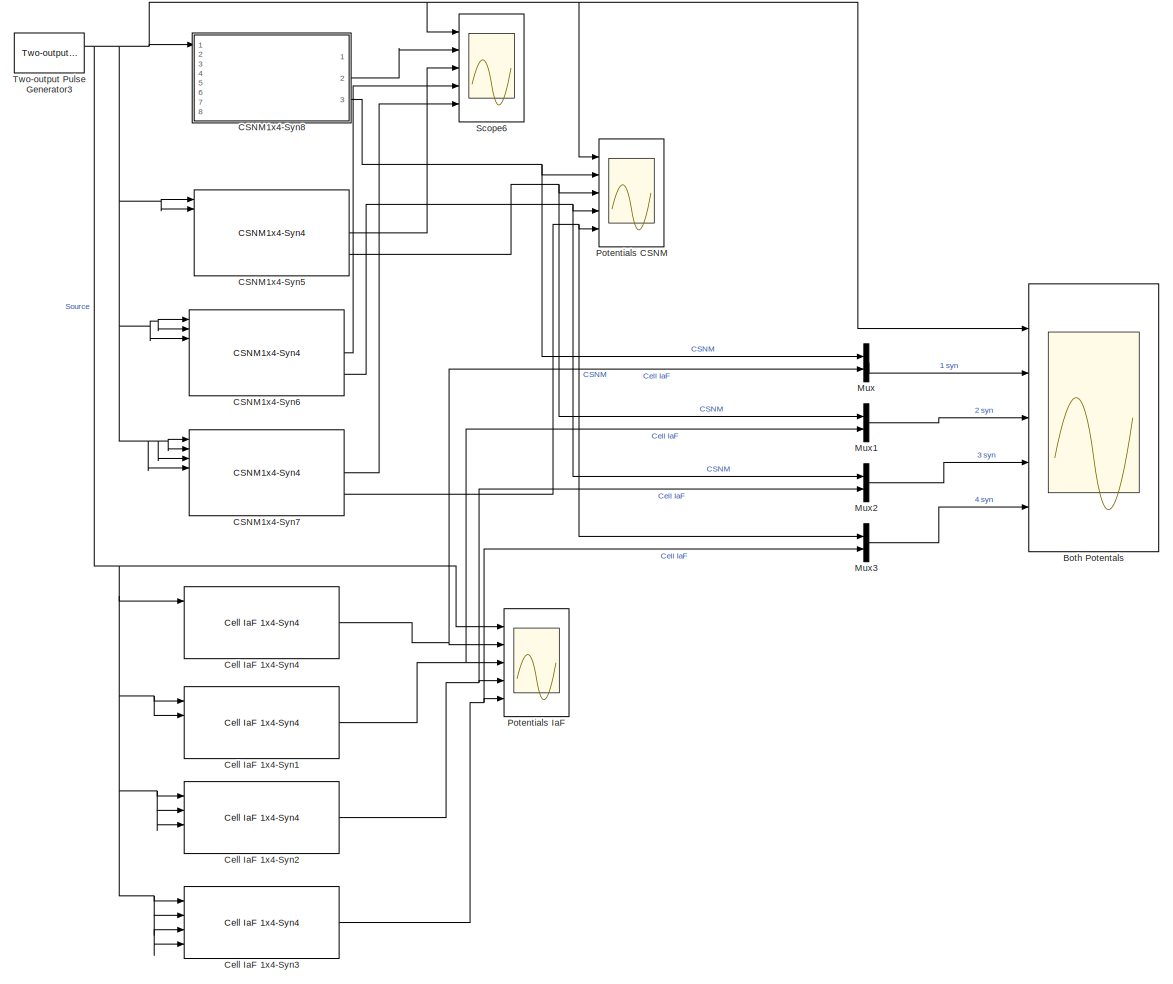
[diagram: root canvas - part 1/1, most of the canvas]
MODEL slx_72229f0c857b
KIND model
CONFIG AbsTol = auto
CONFIG EnableMultiTasking = off
CONFIG FixedStep = auto
CONFIG MaxStep = auto
CONFIG MinStep = auto
CONFIG RelTol = 1e-3
CONFIG SampleTimeConstraint = Unconstrained
CONFIG SolverName = VariableStepAuto
CONFIG StartTime = 0.0
CONFIG StopTime = 1.0
BLOCK [Scope] Both Potentals
  Floating = off
  NumInputPorts = 5
  Ports = [5]
  ScopeSpecificationString = Simulink.scopes.TimeScopeBlockCfg('CurrentConfiguration', extmgr.ConfigurationSet(extmgr.Configuration('Core','General UI',true,'FigureColor',[1 1 1]),extmgr.Configuration('Core','Source UI',true),extmgr.Configuration('Sources','WiredSimulink',true,'DataLoggingSaveFormat','StructureWithTime','DataLoggingMaxPoints','5000000','DataLoggingLimitDataPoints',true,'DataLoggingDecimation','1','DataLogging...<+5539ch>
BLOCK [Reference] CSNM1x4-Syn5  REF=NeuroModelerLibrary/Sized Cells/CSNM1x4-Syn4
  NameLocation = top
  Ports = [8, 3]
  SourceBlock = NeuroModelerLibrary/Sized Cells/CSNM1x4-Syn4
  SourceType = SubSystem
BLOCK [Reference] CSNM1x4-Syn6  REF=NeuroModelerLibrary/Sized Cells/CSNM1x4-Syn4
  NameLocation = top
  Ports = [8, 3]
  SourceBlock = NeuroModelerLibrary/Sized Cells/CSNM1x4-Syn4
  SourceType = SubSystem
BLOCK [Reference] CSNM1x4-Syn7  REF=NeuroModelerLibrary/Sized Cells/CSNM1x4-Syn4
  NameLocation = top
  Ports = [8, 3]
  SourceBlock = NeuroModelerLibrary/Sized Cells/CSNM1x4-Syn4
  SourceType = SubSystem
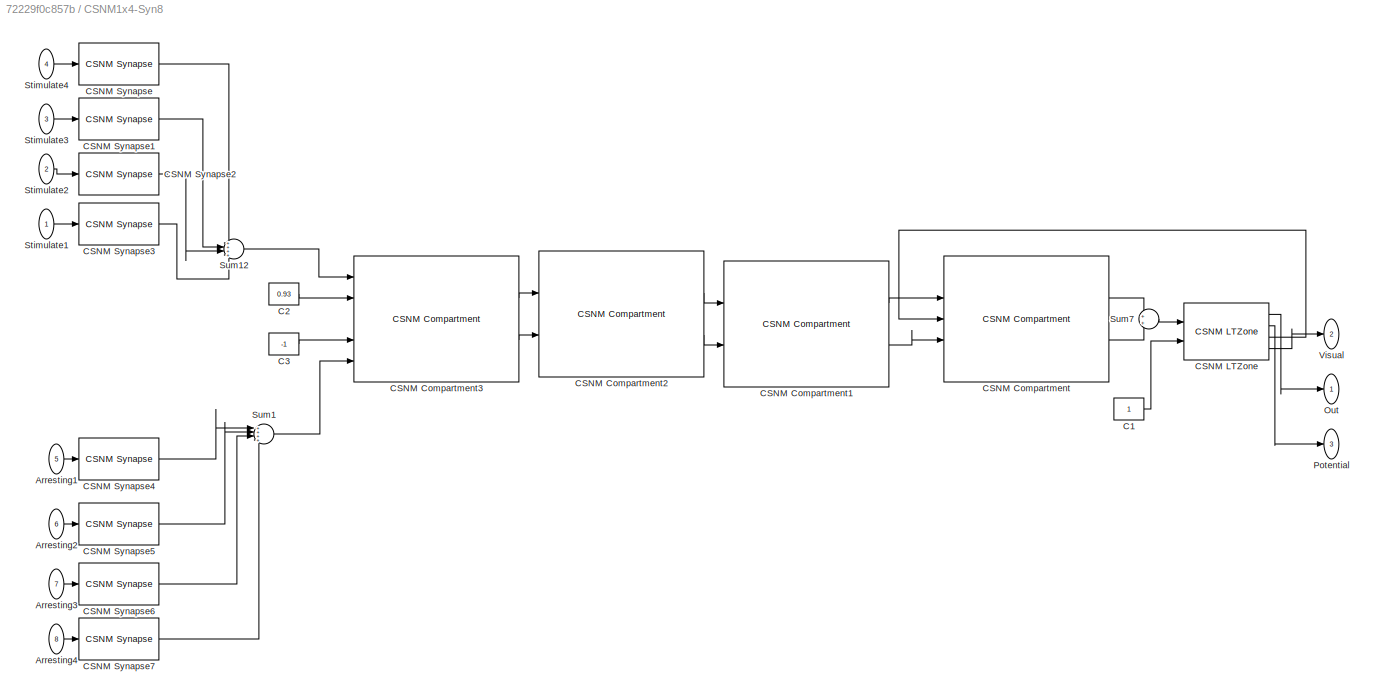
BLOCK [SubSystem] CSNM1x4-Syn8
  AncestorBlock = NeuroModelerLibrary/Sized Cells/CSNM1x4-Syn4
  NameLocation = top
  Ports = [8, 3]
  RequestExecContextInheritance = off
BLOCK [Inport] CSNM1x4-Syn8/Arresting1
  NameLocation = top
  Port = 5
BLOCK [Inport] CSNM1x4-Syn8/Arresting2
  NameLocation = top
  Port = 6
BLOCK [Inport] CSNM1x4-Syn8/Arresting3
  NameLocation = top
  Port = 7
BLOCK [Inport] CSNM1x4-Syn8/Arresting4
  NameLocation = top
  Port = 8
BLOCK [Constant] CSNM1x4-Syn8/C1
  NameLocation = top
BLOCK [Constant] CSNM1x4-Syn8/C2
  Value = 0.93
BLOCK [Constant] CSNM1x4-Syn8/C3
  Value = -1
BLOCK [Reference] CSNM1x4-Syn8/CSNM Compartment  REF=NeuroModelerLibrary/Neuron Elements/CSNM Compartment
  Ports = [5, 2]
  SourceBlock = NeuroModelerLibrary/Neuron Elements/CSNM Compartment
BLOCK [Reference] CSNM1x4-Syn8/CSNM Compartment1  REF=NeuroModelerLibrary/Neuron Elements/CSNM Compartment
  Ports = [5, 2]
  SourceBlock = NeuroModelerLibrary/Neuron Elements/CSNM Compartment
BLOCK [Reference] CSNM1x4-Syn8/CSNM Compartment2  REF=NeuroModelerLibrary/Neuron Elements/CSNM Compartment
  Ports = [5, 2]
  SourceBlock = NeuroModelerLibrary/Neuron Elements/CSNM Compartment
BLOCK [Reference] CSNM1x4-Syn8/CSNM Compartment3  REF=NeuroModelerLibrary/Neuron Elements/CSNM Compartment
  Ports = [5, 2]
  SourceBlock = NeuroModelerLibrary/Neuron Elements/CSNM Compartment
BLOCK [Reference] CSNM1x4-Syn8/CSNM LTZone  REF=NeuroModelerLibrary/Neuron Elements/CSNM LTZone
  Ports = [2, 4]
  SourceBlock = NeuroModelerLibrary/Neuron Elements/CSNM LTZone
  SourceType = Ion pump
BLOCK [Reference] CSNM1x4-Syn8/CSNM Synapse  REF=NeuroModelerLibrary/Neuron Elements/CSNM Synapse
  Ports = [1, 1]
  SourceBlock = NeuroModelerLibrary/Neuron Elements/CSNM Synapse
BLOCK [Reference] CSNM1x4-Syn8/CSNM Synapse1  REF=NeuroModelerLibrary/Neuron Elements/CSNM Synapse
  Ports = [1, 1]
  SourceBlock = NeuroModelerLibrary/Neuron Elements/CSNM Synapse
BLOCK [Reference] CSNM1x4-Syn8/CSNM Synapse2  REF=NeuroModelerLibrary/Neuron Elements/CSNM Synapse
  Ports = [1, 1]
  SourceBlock = NeuroModelerLibrary/Neuron Elements/CSNM Synapse
BLOCK [Reference] CSNM1x4-Syn8/CSNM Synapse3  REF=NeuroModelerLibrary/Neuron Elements/CSNM Synapse
  Ports = [1, 1]
  SourceBlock = NeuroModelerLibrary/Neuron Elements/CSNM Synapse
BLOCK [Reference] CSNM1x4-Syn8/CSNM Synapse4  REF=NeuroModelerLibrary/Neuron Elements/CSNM Synapse
  Ports = [1, 1]
  SourceBlock = NeuroModelerLibrary/Neuron Elements/CSNM Synapse
BLOCK [Reference] CSNM1x4-Syn8/CSNM Synapse5  REF=NeuroModelerLibrary/Neuron Elements/CSNM Synapse
  Ports = [1, 1]
  SourceBlock = NeuroModelerLibrary/Neuron Elements/CSNM Synapse
BLOCK [Reference] CSNM1x4-Syn8/CSNM Synapse6  REF=NeuroModelerLibrary/Neuron Elements/CSNM Synapse
  Ports = [1, 1]
  SourceBlock = NeuroModelerLibrary/Neuron Elements/CSNM Synapse
BLOCK [Reference] CSNM1x4-Syn8/CSNM Synapse7  REF=NeuroModelerLibrary/Neuron Elements/CSNM Synapse
  Ports = [1, 1]
  SourceBlock = NeuroModelerLibrary/Neuron Elements/CSNM Synapse
BLOCK [Outport] CSNM1x4-Syn8/Out
  VectorParamsAs1DForOutWhenUnconnected = off
BLOCK [Outport] CSNM1x4-Syn8/Potential
  Port = 3
  VectorParamsAs1DForOutWhenUnconnected = off
BLOCK [Inport] CSNM1x4-Syn8/Stimulate1
  NameLocation = top
BLOCK [Inport] CSNM1x4-Syn8/Stimulate2
  NameLocation = top
  Port = 2
BLOCK [Inport] CSNM1x4-Syn8/Stimulate3
  NameLocation = top
  Port = 3
BLOCK [Inport] CSNM1x4-Syn8/Stimulate4
  NameLocation = top
  Port = 4
BLOCK [Sum] CSNM1x4-Syn8/Sum1
  InputSameDT = on
  Inputs = ++++
  OutDataTypeStr = Inherit: Same as first input
  Ports = [4, 1]
  SaturateOnIntegerOverflow = on
BLOCK [Sum] CSNM1x4-Syn8/Sum12
  InputSameDT = on
  Inputs = ++++
  OutDataTypeStr = Inherit: Same as first input
  Ports = [4, 1]
  SaturateOnIntegerOverflow = on
BLOCK [Sum] CSNM1x4-Syn8/Sum7
  InputSameDT = on
  OutDataTypeStr = Inherit: Same as first input
  Ports = [2, 1]
  SaturateOnIntegerOverflow = on
BLOCK [Outport] CSNM1x4-Syn8/Visual
  Port = 2
  VectorParamsAs1DForOutWhenUnconnected = off
BLOCK [Reference] Cell IaF 1x4-Syn1  REF=NeuroModelerLibrary/Sized Cells/Cell IaF 1x4-Syn4
  Ports = [4, 1]
  SourceBlock = NeuroModelerLibrary/Sized Cells/Cell IaF 1x4-Syn4
BLOCK [Reference] Cell IaF 1x4-Syn2  REF=NeuroModelerLibrary/Sized Cells/Cell IaF 1x4-Syn4
  Ports = [4, 1]
  SourceBlock = NeuroModelerLibrary/Sized Cells/Cell IaF 1x4-Syn4
BLOCK [Reference] Cell IaF 1x4-Syn3  REF=NeuroModelerLibrary/Sized Cells/Cell IaF 1x4-Syn4
  Ports = [4, 1]
  SourceBlock = NeuroModelerLibrary/Sized Cells/Cell IaF 1x4-Syn4
BLOCK [Reference] Cell IaF 1x4-Syn4  REF=NeuroModelerLibrary/Sized Cells/Cell IaF 1x4-Syn4
  Ports = [4, 1]
  SourceBlock = NeuroModelerLibrary/Sized Cells/Cell IaF 1x4-Syn4
BLOCK [Mux] Mux
  DisplayOption = bar
  Inputs = 2
  Ports = [2, 1]
BLOCK [Mux] Mux1
  DisplayOption = bar
  Inputs = 2
  Ports = [2, 1]
BLOCK [Mux] Mux2
  DisplayOption = bar
  Inputs = 2
  Ports = [2, 1]
BLOCK [Mux] Mux3
  DisplayOption = bar
  Inputs = 2
  Ports = [2, 1]
BLOCK [Scope] Potentials CSNM
  Floating = off
  NumInputPorts = 5
  Ports = [5]
  ScopeSpecificationString = Simulink.scopes.TimeScopeBlockCfg('CurrentConfiguration', extmgr.ConfigurationSet(extmgr.Configuration('Core','General UI',true,'FigureColor',[1 1 1]),extmgr.Configuration('Core','Source UI',true),extmgr.Configuration('Sources','WiredSimulink',true,'DataLoggingSaveFormat','StructureWithTime','DataLoggingMaxPoints','5000000','DataLoggingLimitDataPoints',true,'DataLoggingDecimation','1','DataLogging...<+5090ch>
BLOCK [Scope] Potentials IaF
  Floating = off
  NumInputPorts = 5
  Ports = [5]
  ScopeSpecificationString = Simulink.scopes.TimeScopeBlockCfg('CurrentConfiguration', extmgr.ConfigurationSet(extmgr.Configuration('Core','General UI',true,'FigureColor',[1 1 1]),extmgr.Configuration('Core','Source UI',true),extmgr.Configuration('Sources','WiredSimulink',true,'DataLoggingSaveFormat','StructureWithTime','DataLoggingMaxPoints','5000000','DataLoggingLimitDataPoints',true,'DataLoggingDecimation','1','DataLogging...<+5135ch>
BLOCK [Scope] Scope6
  Floating = off
  NumInputPorts = 5
  Ports = [5]
  ScopeSpecificationString = Simulink.scopes.TimeScopeBlockCfg('CurrentConfiguration', extmgr.ConfigurationSet(extmgr.Configuration('Core','General UI',true,'FigureColor',[1 1 1]),extmgr.Configuration('Core','Source UI',true),extmgr.Configuration('Sources','WiredSimulink',true,'DataLoggingSaveFormat','StructureWithTime','DataLoggingMaxPoints','5000000','DataLoggingLimitDataPoints',true,'DataLoggingDecimation','1','DataLogging...<+5146ch>
BLOCK [Reference] Two-output Pulse Generator3  REF=NeuroModelerLibrary/Support/Two-output
Pulse Generator
  Ports = [0, 2]
  SourceBlock = NeuroModelerLibrary/Support/Two-output\nPulse Generator
LINE CSNM1x4-Syn5:2 -> Scope6:3
NET CSNM1x4-Syn5:3 -> Mux1:1, Potentials CSNM:3
LINE CSNM1x4-Syn6:2 -> Scope6:4
NET CSNM1x4-Syn6:3 -> Mux2:1, Potentials CSNM:4
LINE CSNM1x4-Syn7:2 -> Scope6:5
NET CSNM1x4-Syn7:3 -> Mux3:1, Potentials CSNM:5
LINE CSNM1x4-Syn8:2 -> Scope6:2
NET CSNM1x4-Syn8:3 -> Mux:1, Potentials CSNM:2
NET Cell IaF 1x4-Syn1:1 -> Mux1:2, Potentials IaF:3
NET Cell IaF 1x4-Syn2:1 -> Mux2:2, Potentials IaF:4
NET Cell IaF 1x4-Syn3:1 -> Mux3:2, Potentials IaF:5
NET Cell IaF 1x4-Syn4:1 -> Mux:2, Potentials IaF:2
LINE Mux1:1 -> Both Potentals:3
LINE Mux2:1 -> Both Potentals:4
LINE Mux3:1 -> Both Potentals:5
LINE Mux:1 -> Both Potentals:2
NET Two-output Pulse Generator3:1 -> Both Potentals:1, CSNM1x4-Syn5:1, CSNM1x4-Syn5:2, CSNM1x4-Syn6:1, CSNM1x4-Syn6:2, CSNM1x4-Syn6:3, CSNM1x4-Syn7:1, CSNM1x4-Syn7:2, CSNM1x4-Syn7:3, CSNM1x4-Syn7:4, CSNM1x4-Syn8:1, Cell IaF 1x4-Syn1:1, Cell IaF 1x4-Syn1:2, Cell IaF 1x4-Syn2:1, Cell IaF 1x4-Syn2:2, Cell IaF 1x4-Syn2:3, Cell IaF 1x4-Syn3:1, Cell IaF 1x4-Syn3:2, Cell IaF 1x4-Syn3:3, Cell IaF 1x4-Syn3:4, Cell IaF 1x4-Syn4:1, Potentials CSNM:1, Potentials IaF:1, Scope6:1
note: NET lines group one-source signal fan-out (src -> all destinations, sorted); 1:1 wires keep LINE
